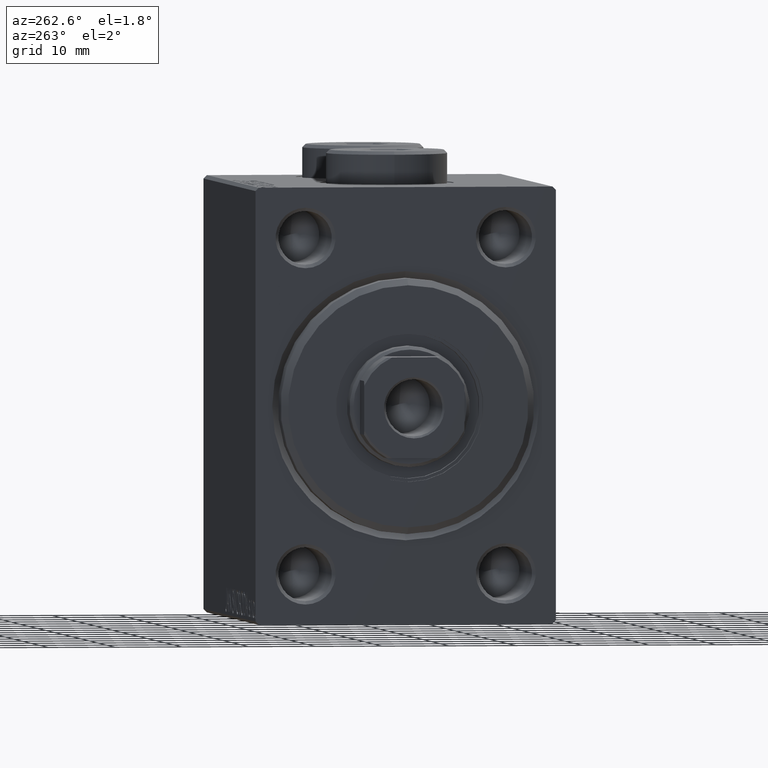
[diagram: clean part render]
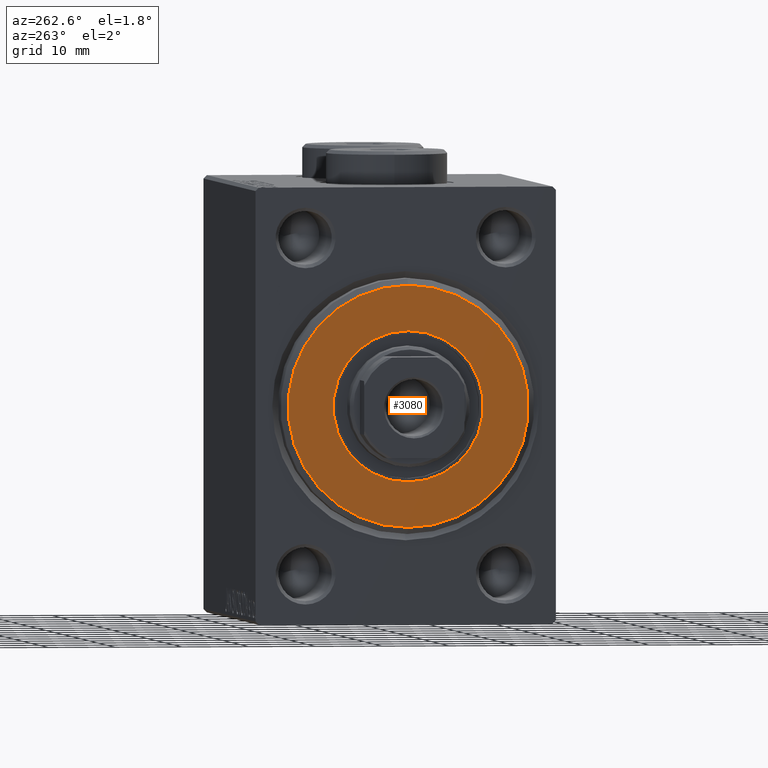
[diagram: same view with one face highlighted and labeled with its STEP entity id]
A machine part, auxiliary view. The second image highlights one B-rep face of the part: STEP entity #3080.
In plain terms, the highlighted planar face has unit normal (-1, 0, 0).
Its self-contained STEP definition (entity closure, byte-faithful):
#2991 = CIRCLE ( 'NONE', #21411, 11.25000000000000178 ) ;
#3065 = ORIENTED_EDGE ( 'NONE', *, *, #3324, .T. ) ;
#3080 = ADVANCED_FACE ( 'NONE', ( #33556, #15123 ), #37238, .T. ) ;
#3209 = CARTESIAN_POINT ( 'NONE',  ( 3.000000000000000000, 0.000000000000000000, 0.000000000000000000 ) ) ;
#3248 = CARTESIAN_POINT ( 'NONE',  ( 3.000000000000000000, 1.377727649040772586E-15, 11.25000000000000178 ) ) ;
#3324 = EDGE_CURVE ( 'NONE', #32453, #5283, #7069, .T. ) ;
#3503 = EDGE_LOOP ( 'NONE', ( #12919, #3065 ) ) ;
#5152 = ORIENTED_EDGE ( 'NONE', *, *, #14006, .F. ) ;
#5283 = VERTEX_POINT ( 'NONE', #21379 ) ;
#5383 = ORIENTED_EDGE ( 'NONE', *, *, #32784, .F. ) ;
#7069 = CIRCLE ( 'NONE', #21065, 17.99999999999998934 ) ;
#8666 = EDGE_LOOP ( 'NONE', ( #5383, #5152 ) ) ;
#8819 = CARTESIAN_POINT ( 'NONE',  ( 3.000000000000000000, 2.265596578422602607E-15, -17.99999999999998934 ) ) ;
#9756 = DIRECTION ( 'NONE',  ( 0.000000000000000000, 0.000000000000000000, -1.000000000000000000 ) ) ;
#12919 = ORIENTED_EDGE ( 'NONE', *, *, #42557, .T. ) ;
#14006 = EDGE_CURVE ( 'NONE', #28473, #26266, #33777, .T. ) ;
#15123 = FACE_BOUND ( 'NONE', #8666, .T. ) ;
#19438 = DIRECTION ( 'NONE',  ( 0.000000000000000000, 0.000000000000000000, -1.000000000000000000 ) ) ;
#21065 = AXIS2_PLACEMENT_3D ( 'NONE', #28243, #31687, #34911 ) ;
#21379 = CARTESIAN_POINT ( 'NONE',  ( 3.000000000000000000, 0.000000000000000000, 17.99999999999998934 ) ) ;
#21411 = AXIS2_PLACEMENT_3D ( 'NONE', #3209, #27436, #34790 ) ;
#23339 = CARTESIAN_POINT ( 'NONE',  ( 3.000000000000000000, 0.000000000000000000, 0.000000000000000000 ) ) ;
#25214 = CARTESIAN_POINT ( 'NONE',  ( 3.000000000000000000, 0.000000000000000000, -11.25000000000000178 ) ) ;
#25984 = AXIS2_PLACEMENT_3D ( 'NONE', #30746, #34195, #9756 ) ;
#26266 = VERTEX_POINT ( 'NONE', #25214 ) ;
#26426 = AXIS2_PLACEMENT_3D ( 'NONE', #23339, #37168, #19438 ) ;
#27436 = DIRECTION ( 'NONE',  ( 1.000000000000000000, 0.000000000000000000, 0.000000000000000000 ) ) ;
#28243 = CARTESIAN_POINT ( 'NONE',  ( 3.000000000000000000, 0.000000000000000000, 0.000000000000000000 ) ) ;
#28473 = VERTEX_POINT ( 'NONE', #3248 ) ;
#29203 = CARTESIAN_POINT ( 'NONE',  ( 3.000000000000000000, 0.000000000000000000, 0.000000000000000000 ) ) ;
#30746 = CARTESIAN_POINT ( 'NONE',  ( 3.000000000000000000, 0.000000000000000000, 0.000000000000000000 ) ) ;
#31687 = DIRECTION ( 'NONE',  ( 1.000000000000000000, -0.000000000000000000, 0.000000000000000000 ) ) ;
#32453 = VERTEX_POINT ( 'NONE', #8819 ) ;
#32784 = EDGE_CURVE ( 'NONE', #26266, #28473, #2991, .T. ) ;
#33556 = FACE_OUTER_BOUND ( 'NONE', #3503, .T. ) ;
#33777 = CIRCLE ( 'NONE', #26426, 11.25000000000000178 ) ;
#34195 = DIRECTION ( 'NONE',  ( 1.000000000000000000, -0.000000000000000000, 0.000000000000000000 ) ) ;
#34790 = DIRECTION ( 'NONE',  ( 0.000000000000000000, 0.000000000000000000, -1.000000000000000000 ) ) ;
#34911 = DIRECTION ( 'NONE',  ( 0.000000000000000000, 0.000000000000000000, -1.000000000000000000 ) ) ;
#36781 = DIRECTION ( 'NONE',  ( 0.000000000000000000, 0.000000000000000000, -1.000000000000000000 ) ) ;
#37168 = DIRECTION ( 'NONE',  ( 1.000000000000000000, 0.000000000000000000, 0.000000000000000000 ) ) ;
#37238 = PLANE ( 'NONE',  #40202 ) ;
#40202 = AXIS2_PLACEMENT_3D ( 'NONE', #29203, #43458, #36781 ) ;
#42557 = EDGE_CURVE ( 'NONE', #5283, #32453, #42898, .T. ) ;
#42898 = CIRCLE ( 'NONE', #25984, 17.99999999999998934 ) ;
#43458 = DIRECTION ( 'NONE',  ( 1.000000000000000000, -0.000000000000000000, 0.000000000000000000 ) ) ;